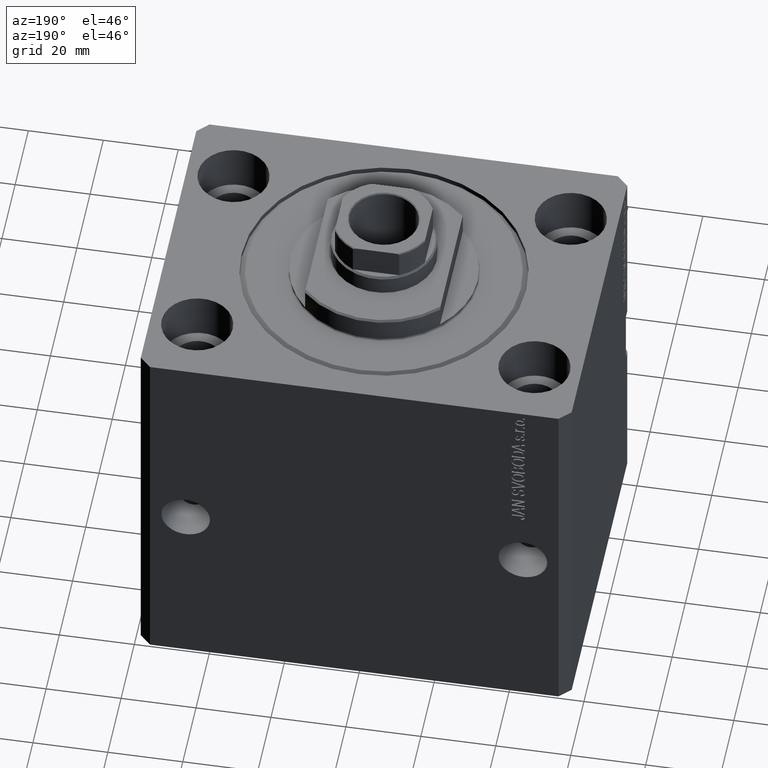
[diagram: clean part render]
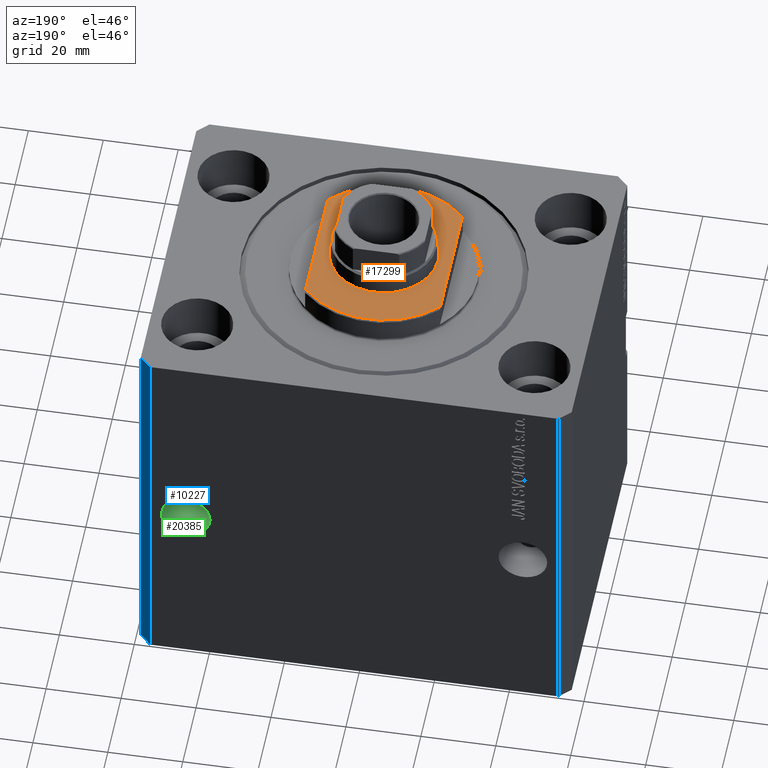
[diagram: same view with three faces highlighted in distinct colors, each labeled with its STEP entity id]
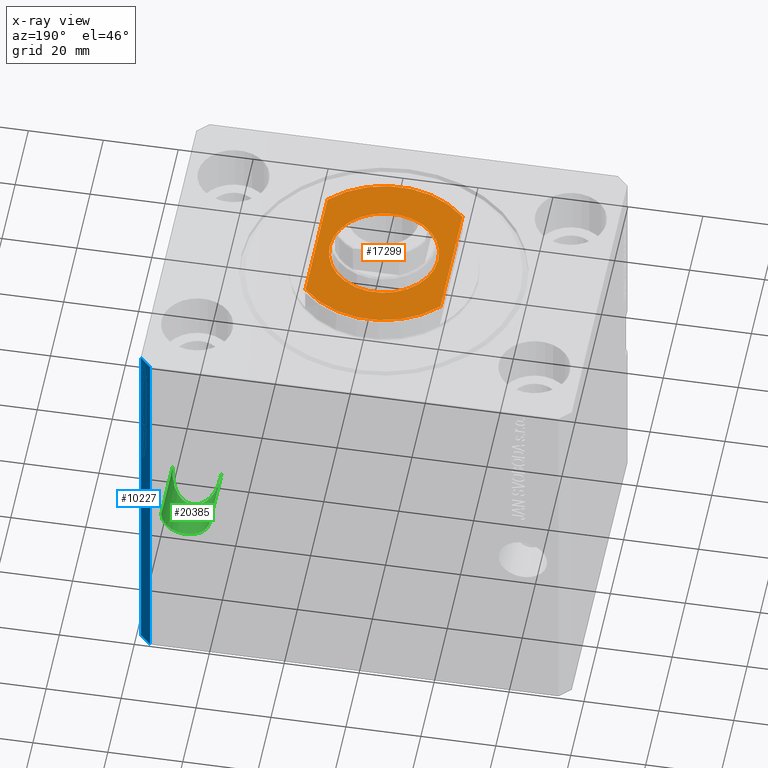
[diagram: x-ray of the same camera — body ghosted, the three highlighted faces saturated]
A machine part, auxiliary view with three faces highlighted in distinct colors.
The next image is the same camera in x-ray (body ghosted, the three faces saturated) — at least one of them is partly hidden behind the body in this view.
Their STEP definitions:

[orange] entity #17299 — the highlighted planar face has unit normal (0, 0, 1).
#234 = EDGE_CURVE ( 'NONE', #15214, #8590, #27779, .T. ) ;
#716 = VERTEX_POINT ( 'NONE', #25309 ) ;
#1386 = AXIS2_PLACEMENT_3D ( 'NONE', #26620, #9194, #23361 ) ;
#1786 = AXIS2_PLACEMENT_3D ( 'NONE', #41857, #13771, #24228 ) ;
#2538 = EDGE_CURVE ( 'NONE', #8590, #10165, #18535, .T. ) ;
#3114 = AXIS2_PLACEMENT_3D ( 'NONE', #13123, #44225, #5429 ) ;
#4863 = AXIS2_PLACEMENT_3D ( 'NONE', #32834, #18254, #25218 ) ;
#5429 = DIRECTION ( 'NONE',  ( -1.000000000000000000, 0.000000000000000000, 0.000000000000000000 ) ) ;
#6756 = EDGE_CURVE ( 'NONE', #28700, #17661, #24917, .T. ) ;
#8590 = VERTEX_POINT ( 'NONE', #20031 ) ;
#9194 = DIRECTION ( 'NONE',  ( 0.000000000000000000, 0.000000000000000000, -1.000000000000000000 ) ) ;
#10165 = VERTEX_POINT ( 'NONE', #17296 ) ;
#10915 = CARTESIAN_POINT ( 'NONE',  ( 0.000000000000000000, 0.000000000000000000, -7.000000000000000000 ) ) ;
#12464 = FACE_BOUND ( 'NONE', #27478, .T. ) ;
#12915 = FACE_OUTER_BOUND ( 'NONE', #31563, .T. ) ;
#13123 = CARTESIAN_POINT ( 'NONE',  ( 0.000000000000000000, 0.000000000000000000, -7.000000000000000000 ) ) ;
#13264 = ORIENTED_EDGE ( 'NONE', *, *, #234, .T. ) ;
#13771 = DIRECTION ( 'NONE',  ( 0.000000000000000000, 0.000000000000000000, -1.000000000000000000 ) ) ;
#14163 = DIRECTION ( 'NONE',  ( -0.000000000000000000, -0.000000000000000000, 1.000000000000000000 ) ) ;
#14469 = CARTESIAN_POINT ( 'NONE',  ( -14.50000000000001243, 0.000000000000000000, -7.000000000000000000 ) ) ;
#14859 = PLANE ( 'NONE',  #1386 ) ;
#15198 = VECTOR ( 'NONE', #42235, 1000.000000000000000 ) ;
#15214 = VERTEX_POINT ( 'NONE', #38487 ) ;
#17296 = CARTESIAN_POINT ( 'NONE',  ( 18.00000000000000000, -16.62077013859462227, -7.000000000000000000 ) ) ;
#17299 = ADVANCED_FACE ( 'NONE', ( #12464, #12915 ), #14859, .T. ) ;
#17661 = VERTEX_POINT ( 'NONE', #14469 ) ;
#18254 = DIRECTION ( 'NONE',  ( -0.000000000000000000, -0.000000000000000000, 1.000000000000000000 ) ) ;
#18535 = LINE ( 'NONE', #32675, #15198 ) ;
#19692 = AXIS2_PLACEMENT_3D ( 'NONE', #10915, #14163, #28323 ) ;
#20013 = EDGE_CURVE ( 'NONE', #15214, #716, #21339, .T. ) ;
#20031 = CARTESIAN_POINT ( 'NONE',  ( 18.00000000000000000, 16.62077013859462227, -7.000000000000000000 ) ) ;
#20854 = ORIENTED_EDGE ( 'NONE', *, *, #27204, .T. ) ;
#20948 = CIRCLE ( 'NONE', #3114, 24.49999999999996803 ) ;
#21109 = CARTESIAN_POINT ( 'NONE',  ( -18.00000000000000000, -41.24318125460256113, -7.000000000000000000 ) ) ;
#21339 = LINE ( 'NONE', #21109, #39994 ) ;
#21562 = DIRECTION ( 'NONE',  ( -0.000000000000000000, -1.000000000000000000, -0.000000000000000000 ) ) ;
#23361 = DIRECTION ( 'NONE',  ( -1.000000000000000000, 0.000000000000000000, -0.000000000000000000 ) ) ;
#24228 = DIRECTION ( 'NONE',  ( -1.000000000000000000, 0.000000000000000000, 0.000000000000000000 ) ) ;
#24917 = CIRCLE ( 'NONE', #4863, 14.50000000000001421 ) ;
#25218 = DIRECTION ( 'NONE',  ( -1.000000000000000000, 0.000000000000000000, 0.000000000000000000 ) ) ;
#25309 = CARTESIAN_POINT ( 'NONE',  ( -18.00000000000000000, -16.62077013859462227, -7.000000000000000000 ) ) ;
#26620 = CARTESIAN_POINT ( 'NONE',  ( 0.000000000000000000, 0.000000000000000000, -7.000000000000000000 ) ) ;
#27124 = CIRCLE ( 'NONE', #19692, 14.50000000000001421 ) ;
#27204 = EDGE_CURVE ( 'NONE', #10165, #716, #20948, .T. ) ;
#27478 = EDGE_LOOP ( 'NONE', ( #30862, #37351 ) ) ;
#27779 = CIRCLE ( 'NONE', #1786, 24.49999999999996803 ) ;
#28323 = DIRECTION ( 'NONE',  ( -1.000000000000000000, 0.000000000000000000, 0.000000000000000000 ) ) ;
#28700 = VERTEX_POINT ( 'NONE', #45745 ) ;
#30862 = ORIENTED_EDGE ( 'NONE', *, *, #43942, .T. ) ;
#31563 = EDGE_LOOP ( 'NONE', ( #13264, #37414, #20854, #33937 ) ) ;
#32675 = CARTESIAN_POINT ( 'NONE',  ( 18.00000000000000000, -41.24318125460256113, -7.000000000000000000 ) ) ;
#32834 = CARTESIAN_POINT ( 'NONE',  ( 0.000000000000000000, 0.000000000000000000, -7.000000000000000000 ) ) ;
#33937 = ORIENTED_EDGE ( 'NONE', *, *, #20013, .F. ) ;
#37351 = ORIENTED_EDGE ( 'NONE', *, *, #6756, .T. ) ;
#37414 = ORIENTED_EDGE ( 'NONE', *, *, #2538, .T. ) ;
#38487 = CARTESIAN_POINT ( 'NONE',  ( -18.00000000000000000, 16.62077013859462227, -7.000000000000000000 ) ) ;
#39994 = VECTOR ( 'NONE', #21562, 1000.000000000000000 ) ;
#41857 = CARTESIAN_POINT ( 'NONE',  ( 0.000000000000000000, 0.000000000000000000, -7.000000000000000000 ) ) ;
#42235 = DIRECTION ( 'NONE',  ( 0.000000000000000000, -1.000000000000000000, -0.000000000000000000 ) ) ;
#43942 = EDGE_CURVE ( 'NONE', #17661, #28700, #27124, .T. ) ;
#44225 = DIRECTION ( 'NONE',  ( 0.000000000000000000, 0.000000000000000000, -1.000000000000000000 ) ) ;
#45745 = CARTESIAN_POINT ( 'NONE',  ( 14.50000000000001243, 1.775737858763663987E-15, -7.000000000000000000 ) ) ;

[blue] entity #10227 — the highlighted planar face has unit normal (0.7071, 0.7071, 0).
#252 = LINE ( 'NONE', #4186, #28551 ) ;
#583 = ORIENTED_EDGE ( 'NONE', *, *, #15557, .T. ) ;
#712 = DIRECTION ( 'NONE',  ( 0.000000000000000000, 0.000000000000000000, 1.000000000000000000 ) ) ;
#2685 = VERTEX_POINT ( 'NONE', #40560 ) ;
#2934 = ORIENTED_EDGE ( 'NONE', *, *, #19275, .F. ) ;
#4186 = CARTESIAN_POINT ( 'NONE',  ( 54.50000000000058975, 45.00000000000002842, -105.0000000000000000 ) ) ;
#5356 = CARTESIAN_POINT ( 'NONE',  ( 54.50000000000058975, 45.00000000000002842, 0.000000000000000000 ) ) ;
#6411 = VERTEX_POINT ( 'NONE', #24362 ) ;
#6799 = DIRECTION ( 'NONE',  ( -0.7071067811865376918, 0.7071067811865574537, 0.000000000000000000 ) ) ;
#9277 = EDGE_CURVE ( 'NONE', #6411, #2685, #33711, .T. ) ;
#10227 = ADVANCED_FACE ( 'NONE', ( #35820 ), #43245, .T. ) ;
#10538 = CARTESIAN_POINT ( 'NONE',  ( 57.50000000000055422, 41.99999999999997868, 0.000000000000000000 ) ) ;
#13362 = LINE ( 'NONE', #41207, #45099 ) ;
#15557 = EDGE_CURVE ( 'NONE', #6411, #15767, #13362, .T. ) ;
#15767 = VERTEX_POINT ( 'NONE', #40924 ) ;
#19275 = EDGE_CURVE ( 'NONE', #2685, #19612, #28865, .T. ) ;
#19612 = VERTEX_POINT ( 'NONE', #5356 ) ;
#20326 = DIRECTION ( 'NONE',  ( -0.7071067811865376918, 0.7071067811865574537, 0.000000000000000000 ) ) ;
#22227 = VECTOR ( 'NONE', #6799, 999.9999999999998863 ) ;
#24362 = CARTESIAN_POINT ( 'NONE',  ( 57.50000000000055422, 41.99999999999997868, -105.0000000000000000 ) ) ;
#25124 = EDGE_LOOP ( 'NONE', ( #2934, #30255, #583, #31211 ) ) ;
#25390 = CARTESIAN_POINT ( 'NONE',  ( 57.50000000000055422, 41.99999999999997868, -105.0000000000000000 ) ) ;
#28551 = VECTOR ( 'NONE', #712, 1000.000000000000000 ) ;
#28865 = LINE ( 'NONE', #10538, #22227 ) ;
#30255 = ORIENTED_EDGE ( 'NONE', *, *, #9277, .F. ) ;
#31211 = ORIENTED_EDGE ( 'NONE', *, *, #37881, .T. ) ;
#31719 = AXIS2_PLACEMENT_3D ( 'NONE', #25390, #39535, #39314 ) ;
#32398 = VECTOR ( 'NONE', #43717, 1000.000000000000000 ) ;
#33253 = CARTESIAN_POINT ( 'NONE',  ( 57.50000000000055422, 41.99999999999997868, -105.0000000000000000 ) ) ;
#33711 = LINE ( 'NONE', #33253, #32398 ) ;
#35820 = FACE_OUTER_BOUND ( 'NONE', #25124, .T. ) ;
#37881 = EDGE_CURVE ( 'NONE', #15767, #19612, #252, .T. ) ;
#39314 = DIRECTION ( 'NONE',  ( -0.7071067811865376918, 0.7071067811865574537, 0.000000000000000000 ) ) ;
#39535 = DIRECTION ( 'NONE',  ( 0.7071067811865574537, 0.7071067811865376918, -0.000000000000000000 ) ) ;
#40560 = CARTESIAN_POINT ( 'NONE',  ( 57.50000000000055422, 41.99999999999997868, 0.000000000000000000 ) ) ;
#40924 = CARTESIAN_POINT ( 'NONE',  ( 54.50000000000058975, 45.00000000000002842, -105.0000000000000000 ) ) ;
#41207 = CARTESIAN_POINT ( 'NONE',  ( 57.50000000000055422, 41.99999999999997868, -105.0000000000000000 ) ) ;
#43245 = PLANE ( 'NONE',  #31719 ) ;
#43717 = DIRECTION ( 'NONE',  ( 0.000000000000000000, 0.000000000000000000, 1.000000000000000000 ) ) ;
#45099 = VECTOR ( 'NONE', #20326, 999.9999999999998863 ) ;

[green] entity #20385 — the highlighted cylindrical surface (edge-blend (fillet) strip) has radius 6.5 mm, axis along (0, -1, 0).
#352 = ORIENTED_EDGE ( 'NONE', *, *, #7325, .F. ) ;
#1477 = VERTEX_POINT ( 'NONE', #25319 ) ;
#1738 = LINE ( 'NONE', #5450, #38258 ) ;
#2210 = AXIS2_PLACEMENT_3D ( 'NONE', #28242, #35427, #2686 ) ;
#2686 = DIRECTION ( 'NONE',  ( 1.000000000000000000, 0.000000000000000000, 0.000000000000000000 ) ) ;
#2887 = CIRCLE ( 'NONE', #15533, 6.499999999999999112 ) ;
#4969 = ORIENTED_EDGE ( 'NONE', *, *, #44557, .T. ) ;
#5450 = CARTESIAN_POINT ( 'NONE',  ( 38.50000000000000711, 53.00000000000003553, -55.00000000000000000 ) ) ;
#7249 = CARTESIAN_POINT ( 'NONE',  ( 38.50000000000000711, 45.00000000000002842, -55.00000000000000000 ) ) ;
#7325 = EDGE_CURVE ( 'NONE', #1477, #15911, #23850, .T. ) ;
#9454 = DIRECTION ( 'NONE',  ( 1.101411730780568590E-16, -1.000000000000000000, -0.000000000000000000 ) ) ;
#10429 = EDGE_CURVE ( 'NONE', #15911, #27174, #44494, .T. ) ;
#10960 = CARTESIAN_POINT ( 'NONE',  ( 38.49999999999999289, 40.50000000000001421, -68.00000000000000000 ) ) ;
#12781 = VERTEX_POINT ( 'NONE', #7249 ) ;
#14213 = CARTESIAN_POINT ( 'NONE',  ( 51.50000000000000000, 40.50000000000001421, -68.00000000000000000 ) ) ;
#14672 = CARTESIAN_POINT ( 'NONE',  ( 51.50000000000000000, 27.50000000000001776, -55.00000000000000000 ) ) ;
#15533 = AXIS2_PLACEMENT_3D ( 'NONE', #24565, #25030, #39181 ) ;
#15911 = VERTEX_POINT ( 'NONE', #35731 ) ;
#16392 = DIRECTION ( 'NONE',  ( 1.101411730780568590E-16, -1.000000000000000000, -0.000000000000000000 ) ) ;
#17933 = EDGE_CURVE ( 'NONE', #1477, #12781, #2887, .T. ) ;
#18154 = CARTESIAN_POINT ( 'NONE',  ( 38.50000000000000000, 27.50000000000001776, -55.00000000000000000 ) ) ;
#20385 = ADVANCED_FACE ( 'NONE', ( #28472 ), #27560, .F. ) ;
#23850 = LINE ( 'NONE', #33813, #31650 ) ;
#24565 = CARTESIAN_POINT ( 'NONE',  ( 45.00000000000000711, 45.00000000000002842, -55.00000000000000000 ) ) ;
#25030 = DIRECTION ( 'NONE',  ( -2.546383084002639322E-16, 1.000000000000000000, 0.000000000000000000 ) ) ;
#25319 = CARTESIAN_POINT ( 'NONE',  ( 51.50000000000000711, 45.00000000000002842, -55.00000000000000000 ) ) ;
#27174 = VERTEX_POINT ( 'NONE', #43989 ) ;
#27560 = CYLINDRICAL_SURFACE ( 'NONE', #2210, 6.499999999999999112 ) ;
#28242 = CARTESIAN_POINT ( 'NONE',  ( 45.00000000000000711, 53.00000000000003553, -55.00000000000000000 ) ) ;
#28472 = FACE_OUTER_BOUND ( 'NONE', #37701, .T. ) ;
#31650 = VECTOR ( 'NONE', #9454, 1000.000000000000000 ) ;
#33813 = CARTESIAN_POINT ( 'NONE',  ( 51.50000000000000711, 53.00000000000003553, -55.00000000000000000 ) ) ;
#35427 = DIRECTION ( 'NONE',  ( 1.101411730780568590E-16, -1.000000000000000000, -0.000000000000000000 ) ) ;
#35731 = CARTESIAN_POINT ( 'NONE',  ( 51.50000000000000000, 27.50000000000001776, -55.00000000000000000 ) ) ;
#37701 = EDGE_LOOP ( 'NONE', ( #40641, #4969, #44970, #352 ) ) ;
#38258 = VECTOR ( 'NONE', #16392, 1000.000000000000000 ) ;
#39181 = DIRECTION ( 'NONE',  ( -1.000000000000000000, 0.000000000000000000, 0.000000000000000000 ) ) ;
#40641 = ORIENTED_EDGE ( 'NONE', *, *, #17933, .T. ) ;
#43989 = CARTESIAN_POINT ( 'NONE',  ( 38.50000000000000000, 27.50000000000001776, -55.00000000000000000 ) ) ;
#44494 =( BOUNDED_CURVE ( )  B_SPLINE_CURVE ( 3, ( #14672, #14213, #10960, #18154 ),
 .UNSPECIFIED., .F., .F. ) 
 B_SPLINE_CURVE_WITH_KNOTS ( ( 4, 4 ),
 ( 1.570796326794896558, 4.712388980384689674 ),
 .UNSPECIFIED. ) 
 CURVE ( )  GEOMETRIC_REPRESENTATION_ITEM ( )  RATIONAL_B_SPLINE_CURVE ( ( 1.000000000000000000, 0.3333333333333333703, 0.3333333333333333703, 1.000000000000000000 ) ) 
 REPRESENTATION_ITEM ( '' )  );
#44557 = EDGE_CURVE ( 'NONE', #12781, #27174, #1738, .T. ) ;
#44970 = ORIENTED_EDGE ( 'NONE', *, *, #10429, .F. ) ;